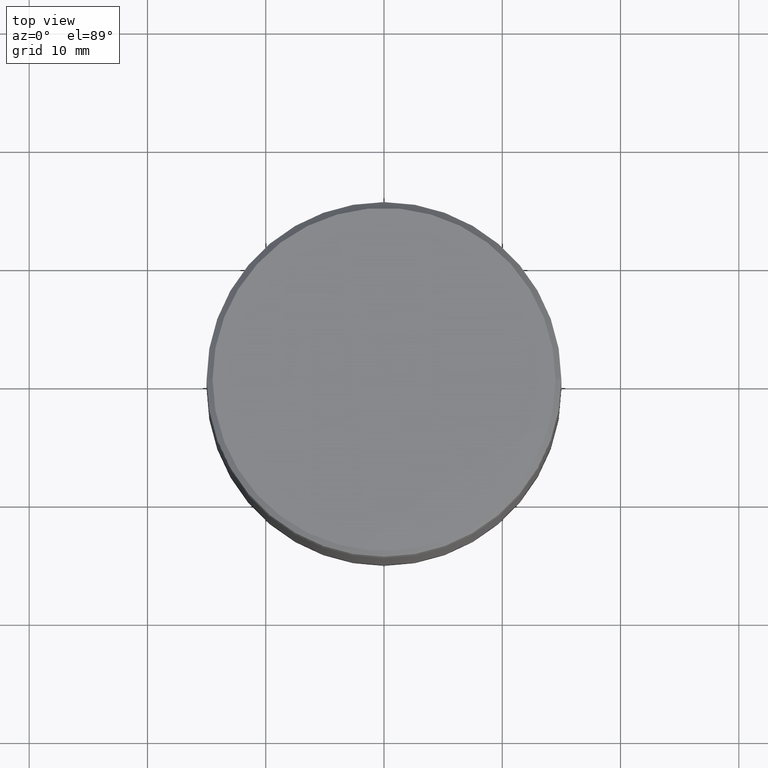
[diagram: clean part render]
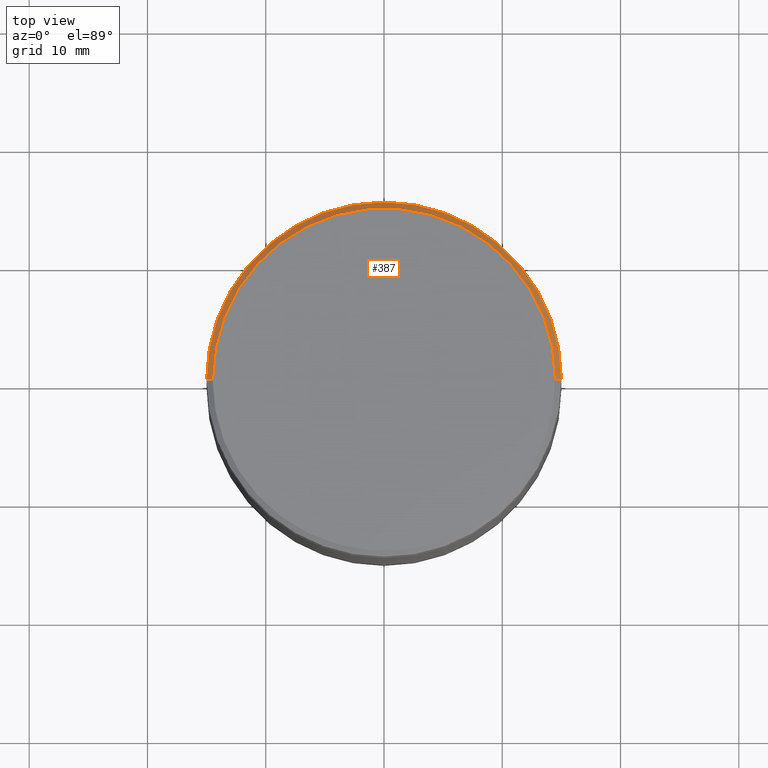
[diagram: same view with one face highlighted and labeled with its STEP entity id]
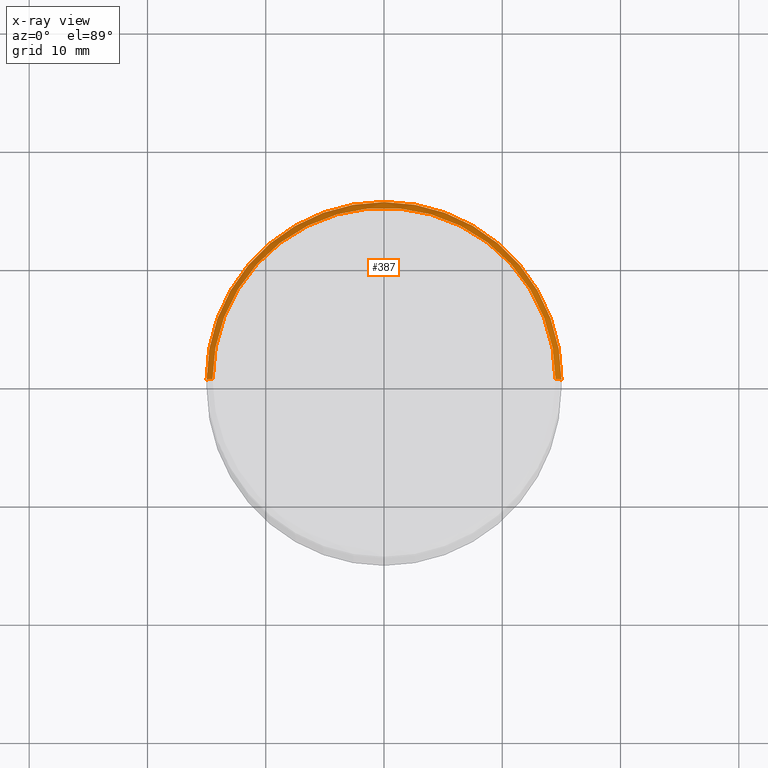
[diagram: x-ray of the same camera — body ghosted, the highlighted face saturated]
A machine part, top view. The second image highlights one B-rep face of the part: STEP entity #387.
The next image is the same camera in x-ray: the body ghosted, the highlighted face saturated — about 0% of this face is hidden behind the body in this view.
In plain terms, the highlighted conical surface has half-angle 45 deg.
Its self-contained STEP definition (entity closure, byte-faithful):
#14 = VECTOR ( 'NONE', #86, 1000.000000000000000 ) ;
#19 = CARTESIAN_POINT ( 'NONE',  ( 0.000000000000000000, 0.000000000000000000, -0.4999999999999970024 ) ) ;
#26 = VERTEX_POINT ( 'NONE', #501 ) ;
#28 = FACE_OUTER_BOUND ( 'NONE', #408, .T. ) ;
#48 = VERTEX_POINT ( 'NONE', #537 ) ;
#86 = DIRECTION ( 'NONE',  ( -0.7071067811865463515, 0.000000000000000000, -0.7071067811865487940 ) ) ;
#96 = EDGE_CURVE ( 'NONE', #489, #551, #348, .T. ) ;
#121 = LINE ( 'NONE', #482, #557 ) ;
#159 = DIRECTION ( 'NONE',  ( 1.000000000000000000, 0.000000000000000000, 0.000000000000000000 ) ) ;
#215 = CARTESIAN_POINT ( 'NONE',  ( -14.50000000000000355, 0.000000000000000000, 0.000000000000000000 ) ) ;
#224 = LINE ( 'NONE', #215, #14 ) ;
#226 = EDGE_CURVE ( 'NONE', #48, #26, #312, .T. ) ;
#238 = AXIS2_PLACEMENT_3D ( 'NONE', #245, #375, #159 ) ;
#245 = CARTESIAN_POINT ( 'NONE',  ( 0.000000000000000000, 0.000000000000000000, 0.000000000000000000 ) ) ;
#247 = CARTESIAN_POINT ( 'NONE',  ( 0.000000000000000000, 0.000000000000000000, 0.000000000000000000 ) ) ;
#252 = DIRECTION ( 'NONE',  ( 1.000000000000000000, 0.000000000000000000, 0.000000000000000000 ) ) ;
#283 = EDGE_CURVE ( 'NONE', #26, #489, #224, .T. ) ;
#287 = DIRECTION ( 'NONE',  ( -1.000000000000000000, 0.000000000000000000, 0.000000000000000000 ) ) ;
#312 = CIRCLE ( 'NONE', #238, 14.50000000000000355 ) ;
#321 = ORIENTED_EDGE ( 'NONE', *, *, #283, .F. ) ;
#348 = CIRCLE ( 'NONE', #475, 15.00000000000000000 ) ;
#353 = EDGE_CURVE ( 'NONE', #48, #551, #121, .T. ) ;
#364 = ORIENTED_EDGE ( 'NONE', *, *, #353, .T. ) ;
#375 = DIRECTION ( 'NONE',  ( -0.000000000000000000, -0.000000000000000000, 1.000000000000000000 ) ) ;
#386 = DIRECTION ( 'NONE',  ( 0.000000000000000000, 0.000000000000000000, -1.000000000000000000 ) ) ;
#387 = ADVANCED_FACE ( 'NONE', ( #28 ), #446, .T. ) ;
#389 = CARTESIAN_POINT ( 'NONE',  ( -15.00000000000000000, 1.836970198721029589E-15, -0.4999999999999970024 ) ) ;
#408 = EDGE_LOOP ( 'NONE', ( #533, #364, #525, #321 ) ) ;
#446 = CONICAL_SURFACE ( 'NONE', #519, 14.50000000000000355, 0.7853981633974466137 ) ;
#475 = AXIS2_PLACEMENT_3D ( 'NONE', #19, #386, #252 ) ;
#476 = CARTESIAN_POINT ( 'NONE',  ( 15.00000000000000000, 0.000000000000000000, -0.4999999999999970024 ) ) ;
#482 = CARTESIAN_POINT ( 'NONE',  ( 14.50000000000000355, 1.775737858763662804E-15, 0.000000000000000000 ) ) ;
#489 = VERTEX_POINT ( 'NONE', #389 ) ;
#501 = CARTESIAN_POINT ( 'NONE',  ( -14.50000000000000355, 0.000000000000000000, 0.000000000000000000 ) ) ;
#519 = AXIS2_PLACEMENT_3D ( 'NONE', #247, #558, #287 ) ;
#524 = DIRECTION ( 'NONE',  ( 0.7071067811865463515, 8.659560562354919300E-17, -0.7071067811865487940 ) ) ;
#525 = ORIENTED_EDGE ( 'NONE', *, *, #96, .F. ) ;
#533 = ORIENTED_EDGE ( 'NONE', *, *, #226, .F. ) ;
#537 = CARTESIAN_POINT ( 'NONE',  ( 14.50000000000000355, 1.806354028742346196E-15, 0.000000000000000000 ) ) ;
#551 = VERTEX_POINT ( 'NONE', #476 ) ;
#557 = VECTOR ( 'NONE', #524, 1000.000000000000000 ) ;
#558 = DIRECTION ( 'NONE',  ( 0.000000000000000000, 0.000000000000000000, -1.000000000000000000 ) ) ;